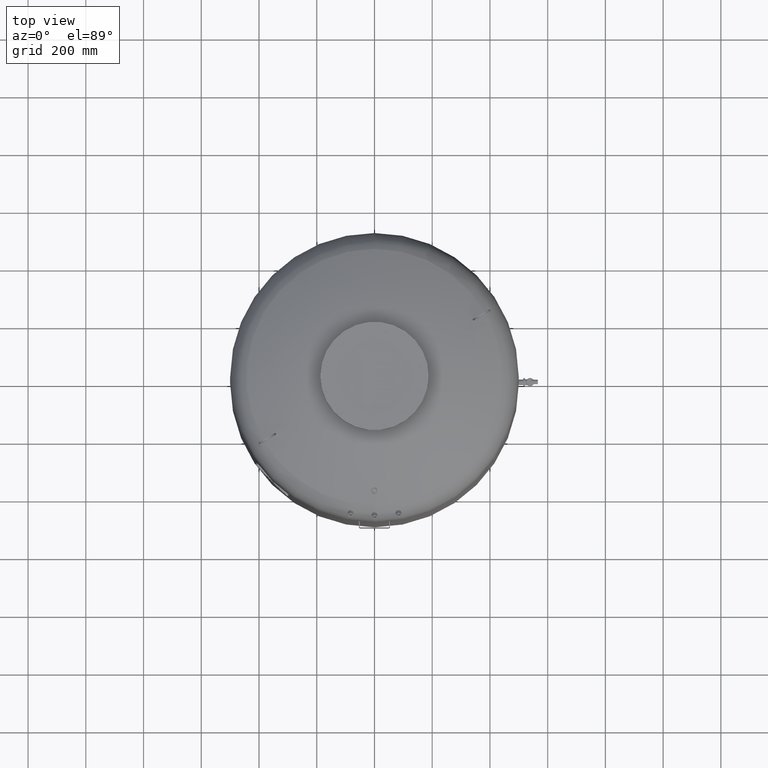
[diagram: clean part render]
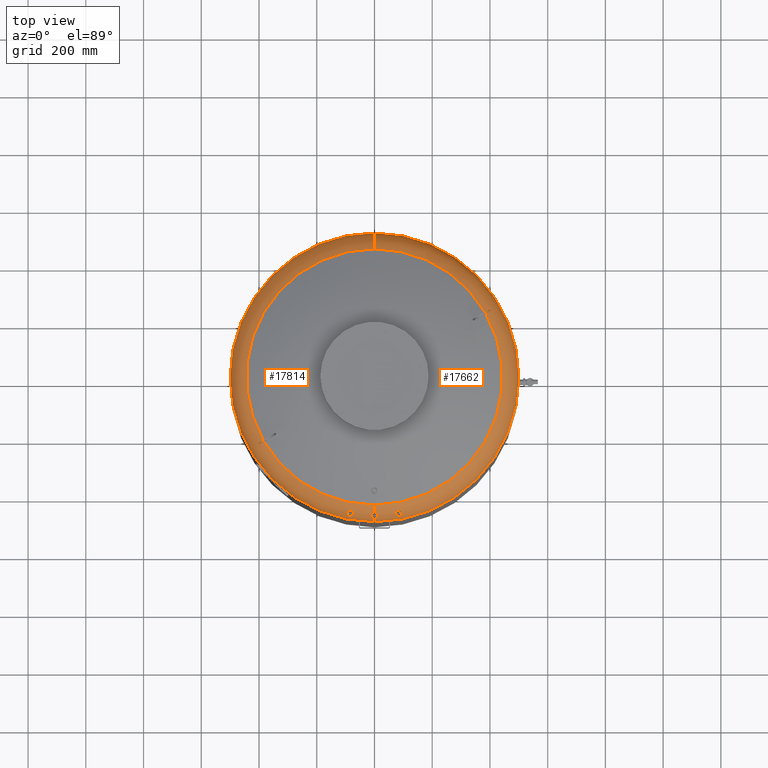
[diagram: same view with one multi-face feature highlighted, each face labeled with its STEP entity id]
A machine part, top view. The highlighted faces form ONE feature: a constant-radius fillet chain: 2 tangent blend faces with common blend radius 100.6 mm. The faces share edges in the B-rep.
Their STEP definitions:
[1] entity #17662 (Torus):
#16573=CARTESIAN_POINT('',(-2.440638E-014,-481.277772533175660,1834.994541120563100));
#16574=VERTEX_POINT('',#16573);
#16590=CARTESIAN_POINT('',(-3.572896E-014,-469.189623608923340,1848.999930700816800));
#16591=VERTEX_POINT('',#16590);
#16770=CARTESIAN_POINT('',(80.066836435702612,-474.169703910089030,1835.544859291312400));
#16771=VERTEX_POINT('',#16770);
#16787=CARTESIAN_POINT('',(84.993415216716102,-461.933500427799120,1848.516956321284600));
#16788=VERTEX_POINT('',#16787);
#16795=CARTESIAN_POINT('',(81.473923119922318,-462.061578962946780,1848.999930700817500));
#16796=VERTEX_POINT('',#16795);
#16797=CARTESIAN_POINT('',(84.993415216716102,-461.933500427799120,1848.516956321284600));
#16798=CARTESIAN_POINT('',(84.503544824743713,-461.881321544061170,1848.653643192280700));
#16799=CARTESIAN_POINT('',(84.002442769029187,-461.858894011723750,1848.762270878815600));
#16800=CARTESIAN_POINT('',(82.822471138810215,-461.878254653280580,1848.946942504954200));
#16801=CARTESIAN_POINT('',(82.144598442698438,-461.943320808245910,1848.999930700817500));
#16802=CARTESIAN_POINT('',(81.473923119922304,-462.061578962946730,1848.999930700817500));
#16803=B_SPLINE_CURVE_WITH_KNOTS('',3,(#16797,#16798,#16799,#16800,#16801,#16802),.UNSPECIFIED.,.F.,.U.,(4,2,4),(54.717280967176990,56.257708759570029,58.300773471615884),.UNSPECIFIED.);
#16804=EDGE_CURVE('',#16788,#16796,#16803,.T.);
#16806=CARTESIAN_POINT('',(81.473923119922304,-462.061578962946730,1848.999930700817500));
#16807=CARTESIAN_POINT('',(80.270940661179878,-462.273697227741990,1848.999930700817500));
#16808=CARTESIAN_POINT('',(79.110151202356022,-462.653940908312680,1848.829779195902300));
#16809=CARTESIAN_POINT('',(77.003352938368124,-463.701225683752060,1848.162764582918300));
#16810=CARTESIAN_POINT('',(76.078610963546808,-464.358213497496930,1847.671570749344300));
#16811=CARTESIAN_POINT('',(74.666555324185623,-465.772515080668030,1846.480263545121700));
#16812=CARTESIAN_POINT('',(74.156046716611357,-466.502070575653650,1845.814790599600400));
#16813=CARTESIAN_POINT('',(73.546890366332462,-467.891027049919780,1844.442578504223800));
#16814=CARTESIAN_POINT('',(73.402751556737073,-468.536980418619810,1843.763934437494500));
#16815=CARTESIAN_POINT('',(73.397271381861728,-469.764387575231640,1842.388972231687800));
#16816=CARTESIAN_POINT('',(73.523644048795887,-470.340643221260680,1841.702391432047500));
#16817=CARTESIAN_POINT('',(74.054685122545507,-471.470554353407810,1840.267063871446700));
#16818=CARTESIAN_POINT('',(74.485445672046993,-472.006748614220500,1839.529719696096700));
#16819=CARTESIAN_POINT('',(75.744352307216062,-473.029685942925310,1837.998329940812500));
#16820=CARTESIAN_POINT('',(76.628183333923275,-473.467721184790610,1837.244530667284600));
#16821=CARTESIAN_POINT('',(78.400858852786129,-473.978097657179490,1836.183218530508400));
#16822=CARTESIAN_POINT('',(79.214345949321853,-474.114157329458240,1835.816526345943900));
#16823=CARTESIAN_POINT('',(80.066836435702612,-474.169703910089030,1835.544859291312400));
#16824=B_SPLINE_CURVE_WITH_KNOTS('',3,(#16806,#16807,#16808,#16809,#16810,#16811,#16812,#16813,#16814,#16815,#16816,#16817,#16818,#16819,#16820,#16821,#16822,#16823),.UNSPECIFIED.,.F.,.U.,(4,2,2,2,2,2,2,2,4),(0.0,3.664621206716430,7.336696746492708,10.645141642724678,13.472869490676285,16.174622177224034,19.180003853472179,22.867295390501965,25.565018784729872),.UNSPECIFIED.);
#16825=EDGE_CURVE('',#16796,#16771,#16824,.T.);
#17363=CARTESIAN_POINT('',(500.0,-3.553717E-014,1776.544644927280400));
#17364=VERTEX_POINT('',#17363);
#17388=CARTESIAN_POINT('',(3.753887E-014,499.999999999999940,1776.544644927280400));
#17389=VERTEX_POINT('',#17388);
#17397=CARTESIAN_POINT('',(2.260647E-015,-3.553717E-014,1776.544644927280400));
#17398=DIRECTION('',(0.0,0.0,-1.0));
#17399=DIRECTION('',(1.0,0.0,0.0));
#17400=AXIS2_PLACEMENT_3D('',#17397,#17398,#17399);
#17401=CIRCLE('',#17400,500.0);
#17402=EDGE_CURVE('',#17389,#17364,#17401,.T.);
#17512=CARTESIAN_POINT('',(-2.369145E-014,-3.553717E-014,1776.544644927280400));
#17513=DIRECTION('',(1.168563E-017,-1.836970E-016,-1.0));
#17514=DIRECTION('',(0.0,-1.0,0.0));
#17515=AXIS2_PLACEMENT_3D('',#17512,#17513,#17514);
#17516=TOROIDAL_SURFACE('',#17515,399.399999999999920,100.600000000000010);
#17517=CARTESIAN_POINT('',(-2.369145E-014,-500.000000000000060,1776.544644927280400));
#17518=VERTEX_POINT('',#17517);
#17519=CARTESIAN_POINT('',(-2.369145E-014,-399.399999999999980,1776.544644927280400));
#17520=DIRECTION('',(-1.0,0.0,0.0));
#17521=DIRECTION('',(0.0,-1.0,0.0));
#17522=AXIS2_PLACEMENT_3D('',#17519,#17520,#17521);
#17523=CIRCLE('',#17522,100.600000000000010);
#17524=EDGE_CURVE('',#17518,#16574,#17523,.T.);
#17525=ORIENTED_EDGE('',*,*,#17524,.F.);
#17526=CARTESIAN_POINT('',(2.260647E-015,-3.553717E-014,1776.544644927280400));
#17527=DIRECTION('',(0.0,0.0,-1.0));
#17528=DIRECTION('',(1.0,0.0,0.0));
#17529=AXIS2_PLACEMENT_3D('',#17526,#17527,#17528);
#17530=CIRCLE('',#17529,500.0);
#17531=EDGE_CURVE('',#17364,#17518,#17530,.T.);
#17532=ORIENTED_EDGE('',*,*,#17531,.F.);
#17533=ORIENTED_EDGE('',*,*,#17402,.F.);
#17534=CARTESIAN_POINT('',(2.959885E-014,443.777777777777600,1866.827383252533800));
#17535=VERTEX_POINT('',#17534);
#17536=CARTESIAN_POINT('',(2.521933E-014,399.399999999999860,1776.544644927280400));
#17537=DIRECTION('',(1.0,0.0,0.0));
#17538=DIRECTION('',(0.0,1.0,0.0));
#17539=AXIS2_PLACEMENT_3D('',#17536,#17537,#17538);
#17540=CIRCLE('',#17539,100.600000000000010);
#17541=EDGE_CURVE('',#17389,#17535,#17540,.T.);
#17542=ORIENTED_EDGE('',*,*,#17541,.T.);
#17543=CARTESIAN_POINT('',(382.814047410498800,224.481894937152840,1866.827383252533800));
#17544=VERTEX_POINT('',#17543);
#17545=CARTESIAN_POINT('',(1.205637E-015,-1.895250E-014,1866.827383252533800));
#17546=DIRECTION('',(0.0,0.0,-1.0));
#17547=DIRECTION('',(1.0,0.0,0.0));
#17548=AXIS2_PLACEMENT_3D('',#17545,#17546,#17547);
#17549=CIRCLE('',#17548,443.777777777777600);
#17550=EDGE_CURVE('',#17535,#17544,#17549,.T.);
#17551=ORIENTED_EDGE('',*,*,#17550,.T.);
#17552=CARTESIAN_POINT('',(389.830975236120140,228.533120106159600,1862.371241859355700));
#17553=VERTEX_POINT('',#17552);
#17554=CARTESIAN_POINT('',(382.814047410498800,224.481894937152840,1866.827383252533800));
#17555=CARTESIAN_POINT('',(383.639422866123480,224.958425678640250,1866.358923998316000));
#17556=CARTESIAN_POINT('',(384.466016830460770,225.435659926460910,1865.871006334071100));
#17557=CARTESIAN_POINT('',(386.558917595189540,226.643996746364280,1864.585746300583200));
#17558=CARTESIAN_POINT('',(387.823245864690140,227.373957013104530,1863.762717578220400));
#17559=CARTESIAN_POINT('',(389.327563745971080,228.242475346808870,1862.724648865125300));
#17560=CARTESIAN_POINT('',(389.579557890296660,228.387964233869470,1862.548753709753100));
#17561=CARTESIAN_POINT('',(389.830975236120140,228.533120106159600,1862.371241859355700));
#17562=B_SPLINE_CURVE_WITH_KNOTS('',3,(#17554,#17555,#17556,#17557,#17558,#17559,#17560,#17561),.UNSPECIFIED.,.F.,.U.,(4,2,2,4),(490.490461707606410,493.520789239596300,498.176642435137920,499.115761009270220),.UNSPECIFIED.);
#17563=EDGE_CURVE('',#17544,#17553,#17562,.T.);
#17564=ORIENTED_EDGE('',*,*,#17563,.T.);
#17565=CARTESIAN_POINT('',(392.830975236120080,223.336967683452970,1862.371241859355700));
#17566=VERTEX_POINT('',#17565);
#17567=CARTESIAN_POINT('',(389.830975236120140,228.533120106159600,1862.371241859355700));
#17568=CARTESIAN_POINT('',(390.333307968774880,227.664983484212660,1862.374723691362300));
#17569=CARTESIAN_POINT('',(390.833741791658330,226.799162381118410,1862.376448557724000));
#17570=CARTESIAN_POINT('',(391.332224433282480,225.935765119134290,1862.376448557724000));
#17571=CARTESIAN_POINT('',(391.830707074909470,225.072367857145200,1862.376448557724000));
#17572=CARTESIAN_POINT('',(392.330313233882860,224.206068902062920,1862.374723691362300));
#17573=CARTESIAN_POINT('',(392.830975236120080,223.336967683452970,1862.371241859355700));
#17574=B_SPLINE_CURVE_WITH_KNOTS('',3,(#17567,#17568,#17569,#17570,#17571,#17572,#17573),.UNSPECIFIED.,.F.,.U.,(4,3,4),(-2.990895849744737,0.0,2.990895849762006),.UNSPECIFIED.);
#17575=EDGE_CURVE('',#17553,#17566,#17574,.T.);
#17576=ORIENTED_EDGE('',*,*,#17575,.T.);
#17577=CARTESIAN_POINT('',(385.814047410498740,219.285742514446160,1866.827383252533800));
#17578=VERTEX_POINT('',#17577);
#17579=CARTESIAN_POINT('',(392.830975236120080,223.336967683452970,1862.371241859355700));
#17580=CARTESIAN_POINT('',(392.579557890296540,223.191811811162810,1862.548753709753100));
#17581=CARTESIAN_POINT('',(392.327563745971020,223.046322924102180,1862.724648865125300));
#17582=CARTESIAN_POINT('',(390.823245864689970,222.177804590397760,1863.762717578220600));
#17583=CARTESIAN_POINT('',(389.558917595189310,221.447844323657480,1864.585746300583200));
#17584=CARTESIAN_POINT('',(387.466016830460660,220.239507503754170,1865.871006334071100));
#17585=CARTESIAN_POINT('',(386.639422866123310,219.762273255933510,1866.358923998316000));
#17586=CARTESIAN_POINT('',(385.814047410498740,219.285742514446160,1866.827383252533800));
#17587=B_SPLINE_CURVE_WITH_KNOTS('',3,(#17579,#17580,#17581,#17582,#17583,#17584,#17585,#17586),.UNSPECIFIED.,.F.,.U.,(4,2,2,4),(96.832413882587730,97.771532456720365,102.427385652262000,105.457713184251520),.UNSPECIFIED.);
#17588=EDGE_CURVE('',#17566,#17578,#17587,.T.);
#17589=ORIENTED_EDGE('',*,*,#17588,.T.);
#17590=CARTESIAN_POINT('',(-2.474646E-014,-443.777777777777600,1866.827383252533800));
#17591=VERTEX_POINT('',#17590);
#17592=CARTESIAN_POINT('',(1.205637E-015,-1.895250E-014,1866.827383252533800));
#17593=DIRECTION('',(0.0,0.0,-1.0));
#17594=DIRECTION('',(1.0,0.0,0.0));
#17595=AXIS2_PLACEMENT_3D('',#17592,#17593,#17594);
#17596=CIRCLE('',#17595,443.777777777777600);
#17597=EDGE_CURVE('',#17578,#17591,#17596,.T.);
#17598=ORIENTED_EDGE('',*,*,#17597,.T.);
#17599=CARTESIAN_POINT('',(-2.369145E-014,-399.399999999999980,1776.544644927280400));
#17600=DIRECTION('',(-1.0,0.0,0.0));
#17601=DIRECTION('',(0.0,-1.0,0.0));
#17602=AXIS2_PLACEMENT_3D('',#17599,#17600,#17601);
#17603=CIRCLE('',#17602,100.600000000000010);
#17604=EDGE_CURVE('',#16591,#17591,#17603,.T.);
#17605=ORIENTED_EDGE('',*,*,#17604,.F.);
#17606=CARTESIAN_POINT('',(-2.440638E-014,-481.277772533175660,1834.994541120563100));
#17607=CARTESIAN_POINT('',(0.663767693420876,-481.277772533175660,1834.994541120563100));
#17608=CARTESIAN_POINT('',(1.327132407291983,-481.235255460921620,1835.052283119416900));
#17609=CARTESIAN_POINT('',(3.172470167635499,-480.993992577751440,1835.378158901997900));
#17610=CARTESIAN_POINT('',(4.302304662895460,-480.697975751295870,1835.777429773388600));
#17611=CARTESIAN_POINT('',(6.300367150350057,-479.850692324963290,1836.893946849666200));
#17612=CARTESIAN_POINT('',(7.150217738928611,-479.308093242282890,1837.599111698446200));
#17613=CARTESIAN_POINT('',(8.319777860177481,-478.164700028228940,1839.040818505617200));
#17614=CARTESIAN_POINT('',(8.706424071928504,-477.606888046208210,1839.730849947240800));
#17615=CARTESIAN_POINT('',(9.138956108212256,-476.550009975629050,1841.005773639236800));
#17616=CARTESIAN_POINT('',(9.239621495916103,-476.069154533581920,1841.575460062544400));
#17617=CARTESIAN_POINT('',(9.258537269256525,-475.107555070033870,1842.692848427051600));
#17618=CARTESIAN_POINT('',(9.182647495145238,-474.630784217413410,1843.236649376827700));
#17619=CARTESIAN_POINT('',(8.830953197445302,-473.592961342907530,1844.399460517053700));
#17620=CARTESIAN_POINT('',(8.519238167698774,-473.039967067691240,1845.005072139537300));
#17621=CARTESIAN_POINT('',(7.501686877240208,-471.784423628546960,1846.354741354832200));
#17622=CARTESIAN_POINT('',(6.696554039162005,-471.126680230690230,1847.039688728346800));
#17623=CARTESIAN_POINT('',(4.844206906027964,-470.104528269520240,1848.087050795337700));
#17624=CARTESIAN_POINT('',(3.838519807076489,-469.728695196732190,1848.463477571226100));
#17625=CARTESIAN_POINT('',(1.868068541252256,-469.291199432981440,1848.899740677942900));
#17626=CARTESIAN_POINT('',(0.936826815871944,-469.189623608923280,1848.999930700816800));
#17627=CARTESIAN_POINT('',(-3.572896E-014,-469.189623608923280,1848.999930700816800));
#17628=B_SPLINE_CURVE_WITH_KNOTS('',3,(#17606,#17607,#17608,#17609,#17610,#17611,#17612,#17613,#17614,#17615,#17616,#17617,#17618,#17619,#17620,#17621,#17622,#17623,#17624,#17625,#17626,#17627),.UNSPECIFIED.,.F.,.U.,(4,2,2,2,2,2,2,2,2,2,4),(29.145313870326323,31.146215195881425,34.813475803036134,38.468575725547367,41.354726520520913,43.603449066426087,45.777737681779072,48.396886370345513,52.094681779719743,55.479428103079613,58.289908550695550),.UNSPECIFIED.);
#17629=EDGE_CURVE('',#16574,#16591,#17628,.T.);
#17630=ORIENTED_EDGE('',*,*,#17629,.F.);
#17631=EDGE_LOOP('',(#17525,#17532,#17533,#17542,#17551,#17564,#17576,#17589,#17598,#17605,#17630));
#17632=FACE_OUTER_BOUND('',#17631,.T.);
#17633=ORIENTED_EDGE('',*,*,#16825,.F.);
#17634=ORIENTED_EDGE('',*,*,#16804,.F.);
#17635=CARTESIAN_POINT('',(80.066836435702612,-474.169703910089030,1835.544859291312400));
#17636=CARTESIAN_POINT('',(80.315290421202320,-474.185892676484740,1835.465683319814200));
#17637=CARTESIAN_POINT('',(80.567055814395673,-474.195236766448260,1835.394572741378400));
#17638=CARTESIAN_POINT('',(81.975782245854333,-474.208846044477410,1835.047261591973000));
#17639=CARTESIAN_POINT('',(83.163543889568857,-474.078529688450090,1834.940843680592300));
#17640=CARTESIAN_POINT('',(85.513696161117423,-473.543701777092790,1835.101539526411200));
#17641=CARTESIAN_POINT('',(86.649886617399389,-473.136085914994910,1835.378947216424400));
#17642=CARTESIAN_POINT('',(88.673379002015594,-472.088947728394430,1836.284448431172500));
#17643=CARTESIAN_POINT('',(89.540955749349209,-471.459742967043840,1836.902932775675700));
#17644=CARTESIAN_POINT('',(90.810704456191033,-470.126411924304310,1838.303193733366500));
#17645=CARTESIAN_POINT('',(91.244393478903731,-469.448437788365420,1839.048146560683100));
#17646=CARTESIAN_POINT('',(91.708219907117254,-468.140229586524130,1840.524514464103300));
#17647=CARTESIAN_POINT('',(91.783015315883944,-467.523850855581490,1841.235044307170900));
#17648=CARTESIAN_POINT('',(91.649309327879109,-466.332818489340010,1842.631079989716200));
#17649=CARTESIAN_POINT('',(91.452490219423183,-465.764071585310430,1843.308750149637000));
#17650=CARTESIAN_POINT('',(90.770288478877433,-464.629336569024360,1844.687431400224600));
#17651=CARTESIAN_POINT('',(90.257814786335942,-464.079701137242920,1845.371992092357500));
#17652=CARTESIAN_POINT('',(88.830486416840472,-463.026552164636030,1846.739698777479400));
#17653=CARTESIAN_POINT('',(87.866386218523488,-462.569861802145790,1847.376609856126400));
#17654=CARTESIAN_POINT('',(86.209105977873719,-462.112051732879710,1848.128306691291100));
#17655=CARTESIAN_POINT('',(85.610161947052418,-461.999193632502570,1848.344867576693800));
#17656=CARTESIAN_POINT('',(84.993415216716102,-461.933500427799120,1848.516956321284600));
#17657=B_SPLINE_CURVE_WITH_KNOTS('',3,(#17635,#17636,#17637,#17638,#17639,#17640,#17641,#17642,#17643,#17644,#17645,#17646,#17647,#17648,#17649,#17650,#17651,#17652,#17653,#17654,#17655,#17656),.UNSPECIFIED.,.F.,.U.,(4,2,2,2,2,2,2,2,2,2,4),(25.565018784729872,26.351256449290144,29.918055138783192,33.598090588564858,37.273576199404459,40.538044904237033,43.352907588273524,46.057931291471377,49.087501744354789,52.777882669491767,54.717280967176990),.UNSPECIFIED.);
#17658=EDGE_CURVE('',#16771,#16788,#17657,.T.);
#17659=ORIENTED_EDGE('',*,*,#17658,.F.);
#17660=EDGE_LOOP('',(#17633,#17634,#17659));
#17661=FACE_BOUND('',#17660,.T.);
#17662=ADVANCED_FACE('',(#17632,#17661),#17516,.T.);
[2] entity #17814 (Torus):
#16573=CARTESIAN_POINT('',(-2.440638E-014,-481.277772533175660,1834.994541120563100));
#16574=VERTEX_POINT('',#16573);
#16590=CARTESIAN_POINT('',(-3.572896E-014,-469.189623608923340,1848.999930700816800));
#16591=VERTEX_POINT('',#16590);
#16598=CARTESIAN_POINT('',(-3.572896E-014,-469.189623608923280,1848.999930700816800));
#16599=CARTESIAN_POINT('',(-1.226614568455976,-469.189623608923280,1848.999930700816800));
#16600=CARTESIAN_POINT('',(-2.440717648108311,-469.363964897661620,1848.828366382545500));
#16601=CARTESIAN_POINT('',(-4.696576406388926,-470.032282362374760,1848.158492884890200));
#16602=CARTESIAN_POINT('',(-5.717066324786281,-470.517625088269260,1847.668325310572500));
#16603=CARTESIAN_POINT('',(-7.349723949792541,-471.663336317218350,1846.478958588720400));
#16604=CARTESIAN_POINT('',(-7.978856717115349,-472.293158318904320,1845.813464587332400));
#16605=CARTESIAN_POINT('',(-8.767180364449684,-473.476696610886850,1844.526605348238300));
#16606=CARTESIAN_POINT('',(-9.002643996097641,-474.002253429116140,1843.944603232691200));
#16607=CARTESIAN_POINT('',(-9.246130960251650,-475.003455273055120,1842.812034305301700));
#16608=CARTESIAN_POINT('',(-9.277536517919977,-475.473886739678110,1842.270248643852500));
#16609=CARTESIAN_POINT('',(-9.169418948993892,-476.443948320682070,1841.132547598934300));
#16610=CARTESIAN_POINT('',(-9.014004504818171,-476.938109963460190,1840.541074240647000));
#16611=CARTESIAN_POINT('',(-8.424922701287107,-478.044741868088010,1839.192077291173500));
#16612=CARTESIAN_POINT('',(-7.917004952702181,-478.629522433588760,1838.459244151971200));
#16613=CARTESIAN_POINT('',(-6.573564565873211,-479.680952611176170,1837.116329804000100));
#16614=CARTESIAN_POINT('',(-5.733244046862108,-480.131843135527730,1836.525314530713800));
#16615=CARTESIAN_POINT('',(-3.797661482623573,-480.837740836613590,1835.589750740730600));
#16616=CARTESIAN_POINT('',(-2.711502606082819,-481.079820122065480,1835.262399560773000));
#16617=CARTESIAN_POINT('',(-1.055885184957859,-481.250877908187250,1835.031042455411600));
#16618=CARTESIAN_POINT('',(-0.527815187818433,-481.277772533175660,1834.994541120563100));
#16619=CARTESIAN_POINT('',(-2.440638E-014,-481.277772533175660,1834.994541120563100));
#16620=B_SPLINE_CURVE_WITH_KNOTS('',3,(#16598,#16599,#16600,#16601,#16602,#16603,#16604,#16605,#16606,#16607,#16608,#16609,#16610,#16611,#16612,#16613,#16614,#16615,#16616,#16617,#16618,#16619),.UNSPECIFIED.,.F.,.U.,(4,2,2,2,2,2,2,2,2,2,4),(0.0,3.679843705367821,7.339132492172398,10.647105204782449,13.093006355296430,15.240677083465222,17.590198044072952,20.765627339765629,24.103946772991840,27.554235968491344,29.145313870326323),.UNSPECIFIED.);
#16621=EDGE_CURVE('',#16591,#16574,#16620,.T.);
#17030=CARTESIAN_POINT('',(-80.066836435702569,-474.169703910089140,1835.544859291312400));
#17031=VERTEX_POINT('',#17030);
#17047=CARTESIAN_POINT('',(-84.993415216716215,-461.933500427799120,1848.516956321284900));
#17048=VERTEX_POINT('',#17047);
#17055=CARTESIAN_POINT('',(-84.993415216716215,-461.933500427799120,1848.516956321284900));
#17056=CARTESIAN_POINT('',(-85.017472795817227,-461.936062937482290,1848.510243616730800));
#17057=CARTESIAN_POINT('',(-85.041508527401064,-461.938697730476860,1848.503461745320200));
#17058=CARTESIAN_POINT('',(-86.235677136687329,-462.073317832940750,1848.162764582918300));
#17059=CARTESIAN_POINT('',(-87.329353412778090,-462.374404050695320,1847.671570749344300));
#17060=CARTESIAN_POINT('',(-89.139971307407109,-463.220461339809050,1846.480263545121700));
#17061=CARTESIAN_POINT('',(-89.869215153751256,-463.731415027769290,1845.814790599600400));
#17062=CARTESIAN_POINT('',(-90.916685973414715,-464.828263434999710,1844.442578504224000));
#17063=CARTESIAN_POINT('',(-91.273061212904921,-465.385962672622330,1843.763934437494500));
#17064=CARTESIAN_POINT('',(-91.698008864419251,-466.537473790194040,1842.388972231687800));
#17065=CARTESIAN_POINT('',(-91.776348440479296,-467.122198966110940,1841.702391432047800));
#17066=CARTESIAN_POINT('',(-91.663785429504756,-468.365594863289290,1840.267063871446500));
#17067=CARTESIAN_POINT('',(-91.442392157746028,-469.016781438362270,1839.529719696096700));
#17068=CARTESIAN_POINT('',(-90.609272054196026,-470.408599525466740,1837.998329940812500));
#17069=CARTESIAN_POINT('',(-89.928559436582063,-471.122506024321860,1837.244530667284600));
#17070=CARTESIAN_POINT('',(-88.253723688980898,-472.342107757094370,1836.052530727148200));
#17071=CARTESIAN_POINT('',(-87.293555171075781,-472.846799643243680,1835.609813170499800));
#17072=CARTESIAN_POINT('',(-85.156939830849765,-473.647922132357390,1835.047261591973000));
#17073=CARTESIAN_POINT('',(-83.996238160232608,-473.931703221850680,1834.940843680592300));
#17074=CARTESIAN_POINT('',(-81.887045012107549,-474.197387821526380,1835.082579359767400));
#17075=CARTESIAN_POINT('',(-80.959103013218879,-474.227842221523640,1835.260516607220800));
#17076=CARTESIAN_POINT('',(-80.066836435702569,-474.169703910089140,1835.544859291312400));
#17077=B_SPLINE_CURVE_WITH_KNOTS('',3,(#17055,#17056,#17057,#17058,#17059,#17060,#17061,#17062,#17063,#17064,#17065,#17066,#17067,#17068,#17069,#17070,#17071,#17072,#17073,#17074,#17075,#17076),.UNSPECIFIED.,.F.,.U.,(4,2,2,2,2,2,2,2,2,2,4),(3.589264959728568,3.664621206716792,7.336696746493837,10.645141642726454,13.472869490678391,16.174622177226187,19.180003853473941,22.867295390503557,26.351256449291231,29.918055138784144,32.743051790141450),.UNSPECIFIED.);
#17078=EDGE_CURVE('',#17048,#17031,#17077,.T.);
#17380=CARTESIAN_POINT('',(-500.0,2.569315E-014,1776.544644927280400));
#17381=VERTEX_POINT('',#17380);
#17388=CARTESIAN_POINT('',(3.753887E-014,499.999999999999940,1776.544644927280400));
#17389=VERTEX_POINT('',#17388);
#17390=CARTESIAN_POINT('',(2.260647E-015,-3.553717E-014,1776.544644927280400));
#17391=DIRECTION('',(0.0,0.0,-1.0));
#17392=DIRECTION('',(1.0,0.0,0.0));
#17393=AXIS2_PLACEMENT_3D('',#17390,#17391,#17392);
#17394=CIRCLE('',#17393,500.0);
#17395=EDGE_CURVE('',#17381,#17389,#17394,.T.);
#17517=CARTESIAN_POINT('',(-2.369145E-014,-500.000000000000060,1776.544644927280400));
#17518=VERTEX_POINT('',#17517);
#17519=CARTESIAN_POINT('',(-2.369145E-014,-399.399999999999980,1776.544644927280400));
#17520=DIRECTION('',(-1.0,0.0,0.0));
#17521=DIRECTION('',(0.0,-1.0,0.0));
#17522=AXIS2_PLACEMENT_3D('',#17519,#17520,#17521);
#17523=CIRCLE('',#17522,100.600000000000010);
#17524=EDGE_CURVE('',#17518,#16574,#17523,.T.);
#17534=CARTESIAN_POINT('',(2.959885E-014,443.777777777777600,1866.827383252533800));
#17535=VERTEX_POINT('',#17534);
#17536=CARTESIAN_POINT('',(2.521933E-014,399.399999999999860,1776.544644927280400));
#17537=DIRECTION('',(1.0,0.0,0.0));
#17538=DIRECTION('',(0.0,1.0,0.0));
#17539=AXIS2_PLACEMENT_3D('',#17536,#17537,#17538);
#17540=CIRCLE('',#17539,100.600000000000010);
#17541=EDGE_CURVE('',#17389,#17535,#17540,.T.);
#17590=CARTESIAN_POINT('',(-2.474646E-014,-443.777777777777600,1866.827383252533800));
#17591=VERTEX_POINT('',#17590);
#17599=CARTESIAN_POINT('',(-2.369145E-014,-399.399999999999980,1776.544644927280400));
#17600=DIRECTION('',(-1.0,0.0,0.0));
#17601=DIRECTION('',(0.0,-1.0,0.0));
#17602=AXIS2_PLACEMENT_3D('',#17599,#17600,#17601);
#17603=CIRCLE('',#17602,100.600000000000010);
#17604=EDGE_CURVE('',#16591,#17591,#17603,.T.);
#17706=CARTESIAN_POINT('',(-2.369145E-014,-3.553717E-014,1776.544644927280400));
#17707=DIRECTION('',(1.168563E-017,-1.836970E-016,-1.0));
#17708=DIRECTION('',(0.0,-1.0,0.0));
#17709=AXIS2_PLACEMENT_3D('',#17706,#17707,#17708);
#17710=TOROIDAL_SURFACE('',#17709,399.399999999999920,100.600000000000010);
#17711=ORIENTED_EDGE('',*,*,#17524,.T.);
#17712=ORIENTED_EDGE('',*,*,#16621,.F.);
#17713=ORIENTED_EDGE('',*,*,#17604,.T.);
#17714=CARTESIAN_POINT('',(-382.814047410493060,-224.481894937162560,1866.827383252533800));
#17715=VERTEX_POINT('',#17714);
#17716=CARTESIAN_POINT('',(1.205637E-015,-1.895250E-014,1866.827383252533800));
#17717=DIRECTION('',(0.0,0.0,-1.0));
#17718=DIRECTION('',(1.0,0.0,0.0));
#17719=AXIS2_PLACEMENT_3D('',#17716,#17717,#17718);
#17720=CIRCLE('',#17719,443.777777777777600);
#17721=EDGE_CURVE('',#17591,#17715,#17720,.T.);
#17722=ORIENTED_EDGE('',*,*,#17721,.T.);
#17723=CARTESIAN_POINT('',(-389.830975236114630,-228.533120106169180,1862.371241859355700));
#17724=VERTEX_POINT('',#17723);
#17725=CARTESIAN_POINT('',(-382.814047410493060,-224.481894937162560,1866.827383252533800));
#17726=CARTESIAN_POINT('',(-383.639352309694170,-224.958384942879830,1866.358964044102800));
#17727=CARTESIAN_POINT('',(-384.465875380145410,-225.435578260096290,1865.871089830497800));
#17728=CARTESIAN_POINT('',(-386.558700313612230,-226.643871298800120,1864.585884909508400));
#17729=CARTESIAN_POINT('',(-387.823023543382530,-227.373828655850640,1863.762865036489300));
#17730=CARTESIAN_POINT('',(-389.327412684914410,-228.242388131680000,1862.724754307438600));
#17731=CARTESIAN_POINT('',(-389.579482540164630,-228.387920730463240,1862.548806910300500));
#17732=CARTESIAN_POINT('',(-389.830975236114630,-228.533120106169180,1862.371241859355700));
#17733=B_SPLINE_CURVE_WITH_KNOTS('',3,(#17725,#17726,#17727,#17728,#17729,#17730,#17731,#17732),.UNSPECIFIED.,.F.,.U.,(4,2,2,4),(490.490460209288130,493.520523970825020,498.176350640228350,499.115750118992540),.UNSPECIFIED.);
#17734=EDGE_CURVE('',#17715,#17724,#17733,.T.);
#17735=ORIENTED_EDGE('',*,*,#17734,.T.);
#17736=CARTESIAN_POINT('',(-392.830975236114630,-223.336967683462570,1862.371241859355700));
#17737=VERTEX_POINT('',#17736);
#17738=CARTESIAN_POINT('',(-389.830975236114630,-228.533120106169180,1862.371241859355700));
#17739=CARTESIAN_POINT('',(-390.333307968772260,-227.664983484217170,1862.374723691362500));
#17740=CARTESIAN_POINT('',(-390.833741791658670,-226.799162381117950,1862.376448557724200));
#17741=CARTESIAN_POINT('',(-391.332224433285660,-225.935765119128830,1862.376448557724200));
#17742=CARTESIAN_POINT('',(-391.830707074909750,-225.072367857144680,1862.376448557724200));
#17743=CARTESIAN_POINT('',(-392.330313233880300,-224.206068902067500,1862.374723691362300));
#17744=CARTESIAN_POINT('',(-392.830975236114630,-223.336967683462570,1862.371241859355700));
#17745=B_SPLINE_CURVE_WITH_KNOTS('',3,(#17738,#17739,#17740,#17741,#17742,#17743,#17744),.UNSPECIFIED.,.F.,.U.,(4,3,4),(-2.990895849762056,0.0,2.990895849744776),.UNSPECIFIED.);
#17746=EDGE_CURVE('',#17724,#17737,#17745,.T.);
#17747=ORIENTED_EDGE('',*,*,#17746,.T.);
#17748=CARTESIAN_POINT('',(-385.814047410493120,-219.285742514455960,1866.827383252533800));
#17749=VERTEX_POINT('',#17748);
#17750=CARTESIAN_POINT('',(-392.830975236114630,-223.336967683462570,1862.371241859355700));
#17751=CARTESIAN_POINT('',(-392.579482540164690,-223.191768307756660,1862.548806910300300));
#17752=CARTESIAN_POINT('',(-392.327412684914520,-223.046235708973430,1862.724754307438600));
#17753=CARTESIAN_POINT('',(-390.823023543382700,-222.177676233144100,1863.762865036489300));
#17754=CARTESIAN_POINT('',(-389.558700313612460,-221.447718876093570,1864.585884909508400));
#17755=CARTESIAN_POINT('',(-387.465875380145580,-220.239425837389750,1865.871089830497800));
#17756=CARTESIAN_POINT('',(-386.639352309694290,-219.762232520173260,1866.358964044102800));
#17757=CARTESIAN_POINT('',(-385.814047410493120,-219.285742514455960,1866.827383252533800));
#17758=B_SPLINE_CURVE_WITH_KNOTS('',3,(#17750,#17751,#17752,#17753,#17754,#17755,#17756,#17757),.UNSPECIFIED.,.F.,.U.,(4,2,2,4),(96.832424772951825,97.771824251715969,102.427650921119290,105.457714682656370),.UNSPECIFIED.);
#17759=EDGE_CURVE('',#17737,#17749,#17758,.T.);
#17760=ORIENTED_EDGE('',*,*,#17759,.T.);
#17761=CARTESIAN_POINT('',(1.205637E-015,-1.895250E-014,1866.827383252533800));
#17762=DIRECTION('',(0.0,0.0,-1.0));
#17763=DIRECTION('',(1.0,0.0,0.0));
#17764=AXIS2_PLACEMENT_3D('',#17761,#17762,#17763);
#17765=CIRCLE('',#17764,443.777777777777600);
#17766=EDGE_CURVE('',#17749,#17535,#17765,.T.);
#17767=ORIENTED_EDGE('',*,*,#17766,.T.);
#17768=ORIENTED_EDGE('',*,*,#17541,.F.);
#17769=ORIENTED_EDGE('',*,*,#17395,.F.);
#17770=CARTESIAN_POINT('',(2.260647E-015,-3.553717E-014,1776.544644927280400));
#17771=DIRECTION('',(0.0,0.0,-1.0));
#17772=DIRECTION('',(1.0,0.0,0.0));
#17773=AXIS2_PLACEMENT_3D('',#17770,#17771,#17772);
#17774=CIRCLE('',#17773,500.0);
#17775=EDGE_CURVE('',#17518,#17381,#17774,.T.);
#17776=ORIENTED_EDGE('',*,*,#17775,.F.);
#17777=EDGE_LOOP('',(#17711,#17712,#17713,#17722,#17735,#17747,#17760,#17767,#17768,#17769,#17776));
#17778=FACE_OUTER_BOUND('',#17777,.T.);
#17779=CARTESIAN_POINT('',(-81.473923119922148,-462.061578962946840,1848.999930700817500));
#17780=VERTEX_POINT('',#17779);
#17781=CARTESIAN_POINT('',(-81.473923119922134,-462.061578962946780,1848.999930700817500));
#17782=CARTESIAN_POINT('',(-82.652168439907385,-461.853822523139910,1848.999930700817500));
#17783=CARTESIAN_POINT('',(-83.847537746242438,-461.811446496208990,1848.836686618422200));
#17784=CARTESIAN_POINT('',(-84.993415216716215,-461.933500427799120,1848.516956321284900));
#17785=B_SPLINE_CURVE_WITH_KNOTS('',3,(#17781,#17782,#17783,#17784),.UNSPECIFIED.,.F.,.U.,(4,4),(0.0,3.589264959728568),.UNSPECIFIED.);
#17786=EDGE_CURVE('',#17780,#17048,#17785,.T.);
#17787=ORIENTED_EDGE('',*,*,#17786,.F.);
#17788=CARTESIAN_POINT('',(-80.066836435702569,-474.169703910089140,1835.544859291312400));
#17789=CARTESIAN_POINT('',(-79.796775038657316,-474.152107247832020,1835.630920995785300));
#17790=CARTESIAN_POINT('',(-79.529978836788132,-474.126381746203550,1835.726718350295400));
#17791=CARTESIAN_POINT('',(-78.138209656183022,-473.946582330397400,1836.284448431172700));
#17792=CARTESIAN_POINT('',(-77.107753486089862,-473.652051982661930,1836.902932775675900));
#17793=CARTESIAN_POINT('',(-75.458553921679808,-472.833410275436390,1838.303193733366500));
#17794=CARTESIAN_POINT('',(-74.819138736175987,-472.344653364517910,1839.048146560683100));
#17795=CARTESIAN_POINT('',(-73.935850907564614,-471.273977752251770,1840.524514464103500));
#17796=CARTESIAN_POINT('',(-73.654752271978097,-470.720352743602010,1841.235044307170900));
#17797=CARTESIAN_POINT('',(-73.373037741653775,-469.555418276746930,1842.631079989716500));
#17798=CARTESIAN_POINT('',(-73.363464307867204,-468.953654908252300,1843.308750149637000));
#17799=CARTESIAN_POINT('',(-73.616422016438619,-467.654026049822160,1844.687431400224800));
#17800=CARTESIAN_POINT('',(-73.910003374512087,-466.962261364681010,1845.371992092357700));
#17801=CARTESIAN_POINT('',(-74.891055148211109,-465.484449993026490,1846.739698777479600));
#17802=CARTESIAN_POINT('',(-75.640815687033410,-464.725559741401640,1847.376609856126600));
#17803=CARTESIAN_POINT('',(-77.424845565877405,-463.455728727484820,1848.333986994285600));
#17804=CARTESIAN_POINT('',(-78.424893749933588,-462.944491574662210,1848.662325968391100));
#17805=CARTESIAN_POINT('',(-80.144001891130870,-462.350541048644350,1848.946942504954200));
#17806=CARTESIAN_POINT('',(-80.803247797146128,-462.179837117647540,1848.999930700817500));
#17807=CARTESIAN_POINT('',(-81.473923119922134,-462.061578962946780,1848.999930700817500));
#17808=B_SPLINE_CURVE_WITH_KNOTS('',3,(#17788,#17789,#17790,#17791,#17792,#17793,#17794,#17795,#17796,#17797,#17798,#17799,#17800,#17801,#17802,#17803,#17804,#17805,#17806,#17807),.UNSPECIFIED.,.F.,.U.,(4,2,2,2,2,2,2,2,2,4),(32.743051790141450,33.598090588565995,37.273576199405632,40.538044904238134,43.352907588275407,46.057931291473821,49.087501744357269,52.777882669494431,56.257708759572530,58.300773471617973),.UNSPECIFIED.);
#17809=EDGE_CURVE('',#17031,#17780,#17808,.T.);
#17810=ORIENTED_EDGE('',*,*,#17809,.F.);
#17811=ORIENTED_EDGE('',*,*,#17078,.F.);
#17812=EDGE_LOOP('',(#17787,#17810,#17811));
#17813=FACE_BOUND('',#17812,.T.);
#17814=ADVANCED_FACE('',(#17778,#17813),#17710,.T.);